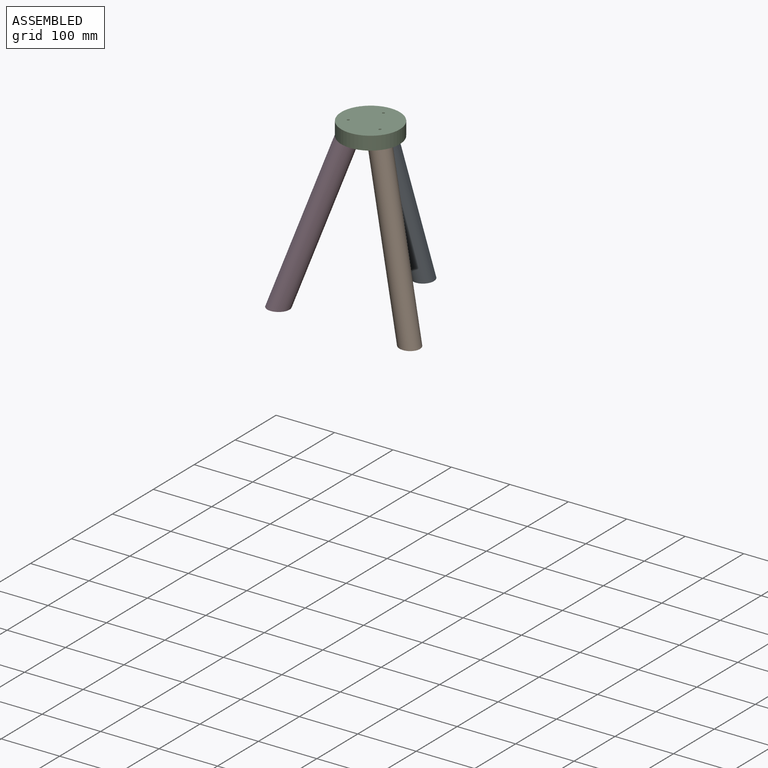
[diagram: assembled view]
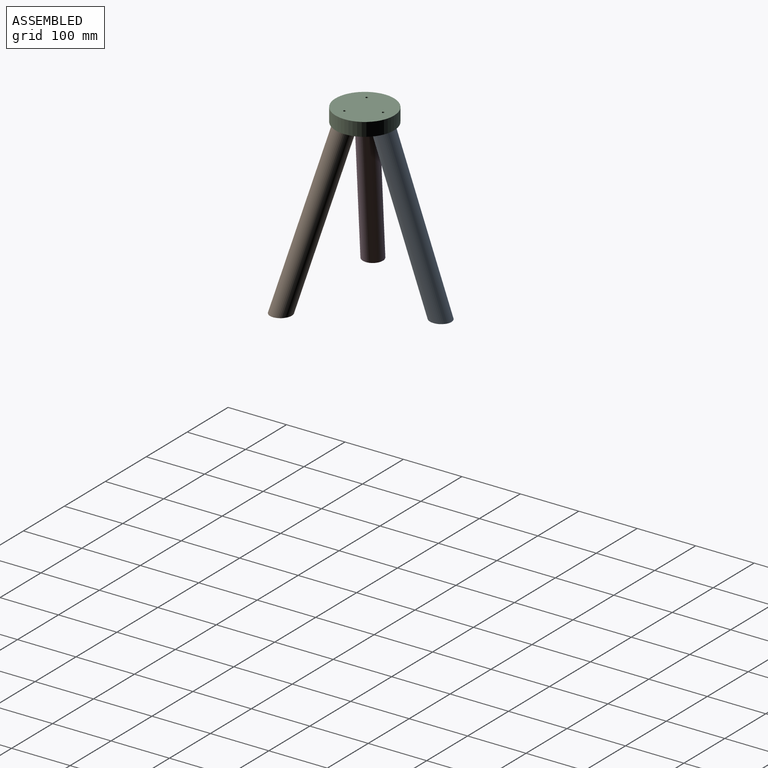
[diagram: assembled view, second angle]
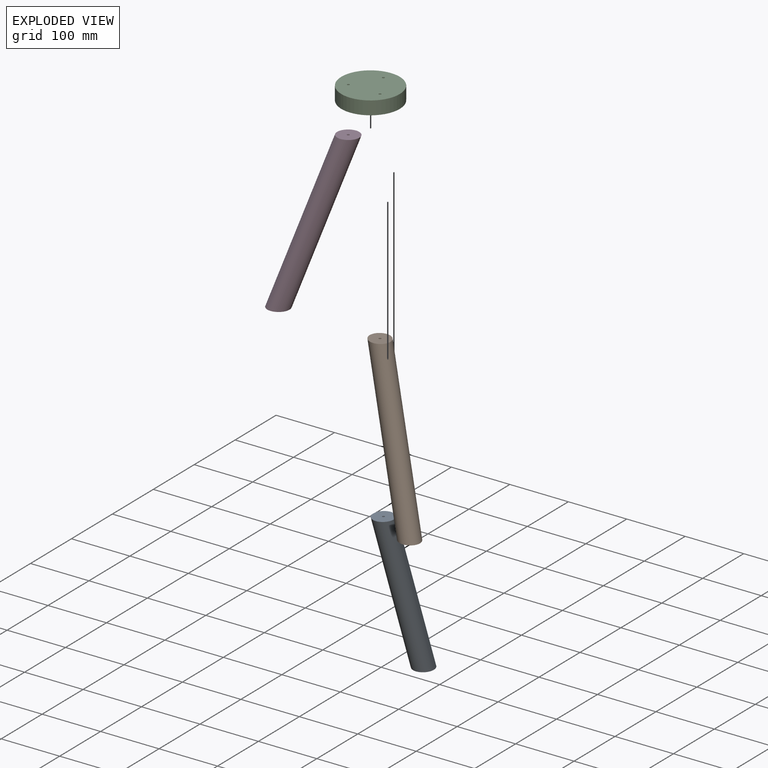
[diagram: exploded view]
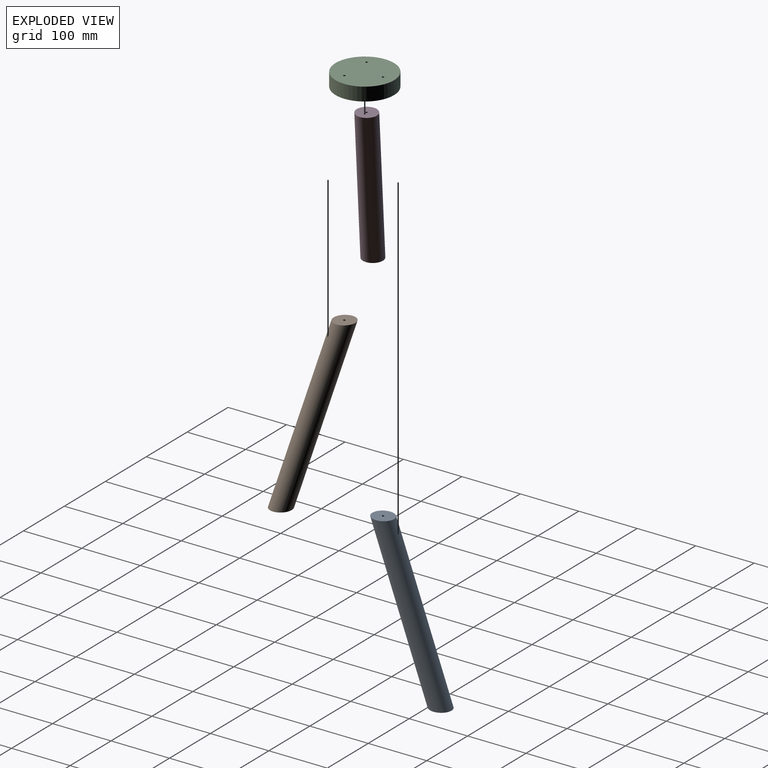
[diagram: exploded view, second angle]
ASSEMBLY  parts=4 mates=3
PART A: 5 faces, bbox 35x35x300.1 mm
  f0: cylinder r=17.5mm len=300.09mm, axis (0,0,-1), area 31586mm2, adj f1,f2
  f1: plane 35x35mm, normal (0.34,0,0.94), area 1011.3mm2, adj f0,f3
  f2: plane 35x35mm, normal (-0.34,0,-0.94), area 1023.9mm2, adj f0
  f3: cylinder r=2mm len=36.14mm, axis (0.34,0,0.94), area 465mm2, adj f1,f4
  f4: plane 4x3.76mm, normal (0.34,0,0.94), area 12.6mm2, adj f3
PART B: same geometry as A
PART C: 6 faces, bbox 100x100x23 mm
  f0: plane 100x100mm, normal (0,0,1), area 7816.3mm2, adj f2,f3,f4,f5
  f1: plane 100x100mm, normal (0,0,-1), area 7816.3mm2, adj f2,f3,f4,f5
  f2: cylinder r=50mm len=100mm, axis (0,0,-1), area 7225.7mm2, adj f0,f1
  f3: cylinder r=2mm len=23mm, axis (0,0,1), area 289mm2, adj f0,f1
  f4: cylinder r=2mm len=23mm, axis (0,0,1), area 289mm2, adj f0,f1
  f5: cylinder r=2mm len=23mm, axis (0,0,1), area 289mm2, adj f0,f1
PART D: same geometry as A
PLACE A rot(axis=(0.17,-0.17,0.97),91.7deg) t=(-43.67,125.43,-397.66)mm
PLACE B rot(axis=(-0.15,-0.54,-0.83),35.9deg) t=(70.47,-72.28,-397.66)mm
PLACE C t=(-43.67,-6.37,-121.74)mm
PLACE D rot(axis=(-0.17,-0.05,-0.98),150.5deg) t=(-157.82,-72.28,-397.66)mm
MATE revolute A.f3 <-> C.f3  axis (0,0,1) through (-43.67,25,-121.74)mm
MATE revolute B.f3 <-> C.f5  axis (0,0,1) through (-16.5,-22.06,-121.74)mm
MATE revolute D.f3 <-> C.f4  axis (0,0,1) through (-70.85,-22.06,-121.74)mm
